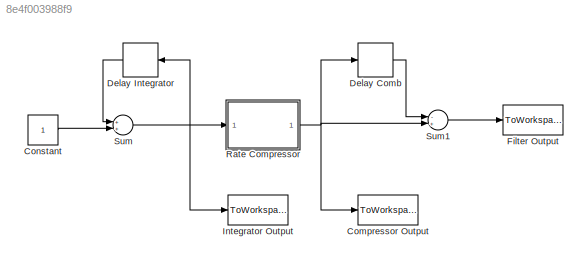
MODEL slx_8e4f003988f9
KIND model
CONFIG AbsTol = auto
CONFIG EnableMultiTasking = off
CONFIG FixedStep = 1
CONFIG MaxStep = auto
CONFIG MinStep = auto
CONFIG RelTol = 1e-3
CONFIG SampleTimeConstraint = Unconstrained
CONFIG Solver = FixedStepAuto
CONFIG SolverName = FixedStepAuto
CONFIG StartTime = 0.0
CONFIG StopTime = 14
BLOCK [ToWorkspace] Compressor Output
  MaxDataPoints = inf
  Ports = [1]
  SampleTime = 2
  Save2DSignal = 2-D array (concatenate along first dimension)
  VariableName = y_out_Compr
BLOCK [Constant] Constant
  OutDataTypeStr = fixdt(1,3,0)
  SampleTime = 1
BLOCK [Delay] Delay Comb
  DelayLength = 1
  InitialCondition = 0
  InputPortMap = u0
  Ports = [1, 1]
  SampleTime = 2
BLOCK [Delay] Delay Integrator
  DelayLength = 1
  InitialCondition = 0
  InputPortMap = u0
  Ports = [1, 1]
  SampleTime = 1
BLOCK [ToWorkspace] Filter Output
  MaxDataPoints = inf
  Ports = [1]
  SampleTime = 2
  Save2DSignal = 2-D array (concatenate along first dimension)
  VariableName = y_out
BLOCK [ToWorkspace] Integrator Output
  MaxDataPoints = inf
  Ports = [1]
  SampleTime = 1
  Save2DSignal = 2-D array (concatenate along first dimension)
  VariableName = y_out_Int
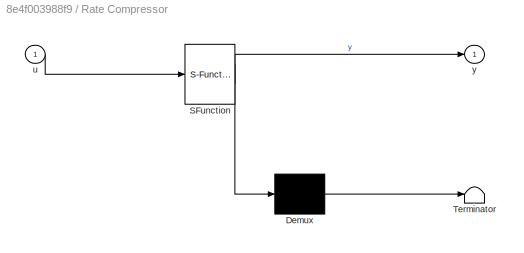
BLOCK [SubSystem] Rate Compressor
  ErrorFcn = Stateflow.Translate.translate
  PermitHierarchicalResolution = ExplicitOnly
  Ports = [1, 1]
  RequestExecContextInheritance = off
  SFBlockType = MATLAB Function
  TreatAsAtomicUnit = on
  Variant = off
BLOCK [Demux] Rate Compressor/ Demux 
  Outputs = 1
  Ports = [1, 1]
BLOCK [S-Function] Rate Compressor/ SFunction 
  EnableBusSupport = on
  FunctionName = sf_sfun
  PortCounts = [1 2]
  Ports = [1, 2]
  SFcnIsStateOwnerBlock = off
  SFunctionDeploymentMode = off
  Tag = Stateflow S-Function cicsimuB 2
BLOCK [Terminator] Rate Compressor/ Terminator 
BLOCK [Inport] Rate Compressor/u
  IconDisplay = Port number
BLOCK [Outport] Rate Compressor/y
  IconDisplay = Port number
BLOCK [Sum] Sum
  AccumDataTypeStr = fixdt(1,3,0)
  InputSameDT = off
  OutDataTypeStr = fixdt(1,3,0)
  Ports = [2, 1]
  SaturateOnIntegerOverflow = off
BLOCK [Sum] Sum1
  AccumDataTypeStr = fixdt(1,3,0)
  InputSameDT = off
  Inputs = -+
  OutDataTypeStr = fixdt(1,3,0)
  Ports = [2, 1]
  SaturateOnIntegerOverflow = off
LINE Constant:1 -> Sum:2
LINE Delay Comb:1 -> Sum1:1
LINE Delay Integrator:1 -> Sum:1
NET Rate Compressor:1 -> Compressor Output:1, Delay Comb:1, Sum1:2
LINE Sum1:1 -> Filter Output:1
NET Sum:1 -> Delay Integrator:1, Integrator Output:1, Rate Compressor:1
note: NET lines group one-source signal fan-out (src -> all destinations, sorted); 1:1 wires keep LINE
CHART Rate Compressor states=1 transitions=1
  STATE_LABEL 'eML_blk_kernel()'
  STATE_LABEL 'SCRIPT:\nfunction y = fcn(u)\n\ny = u(1:2:length(u));\n\nend\n'
